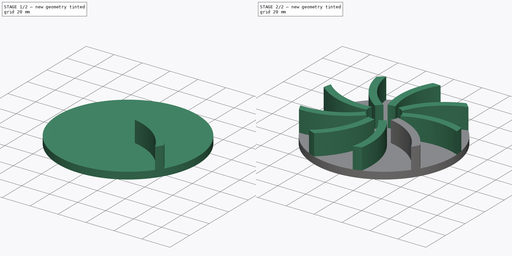
[diagram: build sequence overview — one tinted view per stage of 2, left to right]
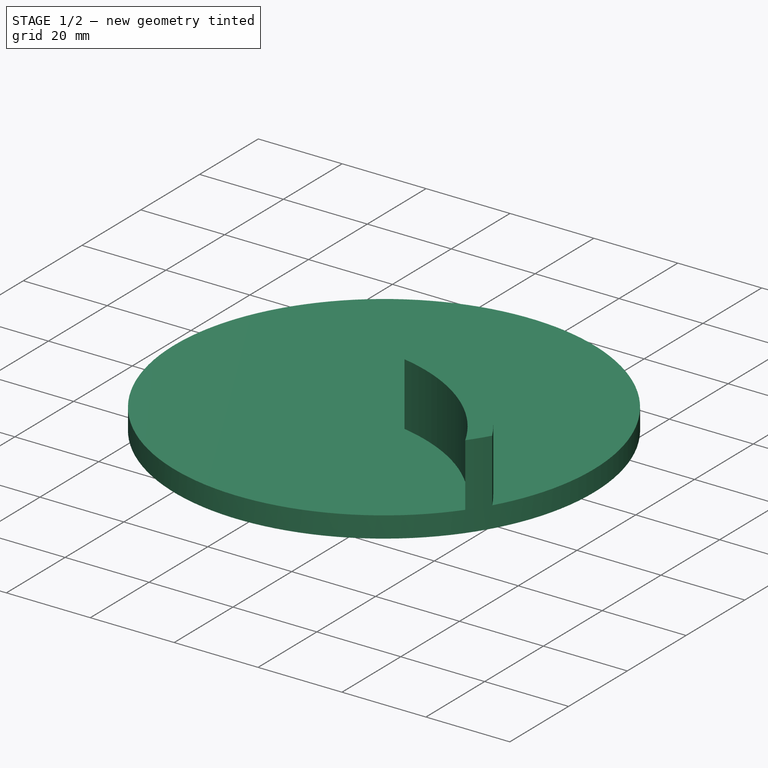
[diagram: stage 1 of 2 — iso view after this stage's code; geometry added in this stage tinted green]
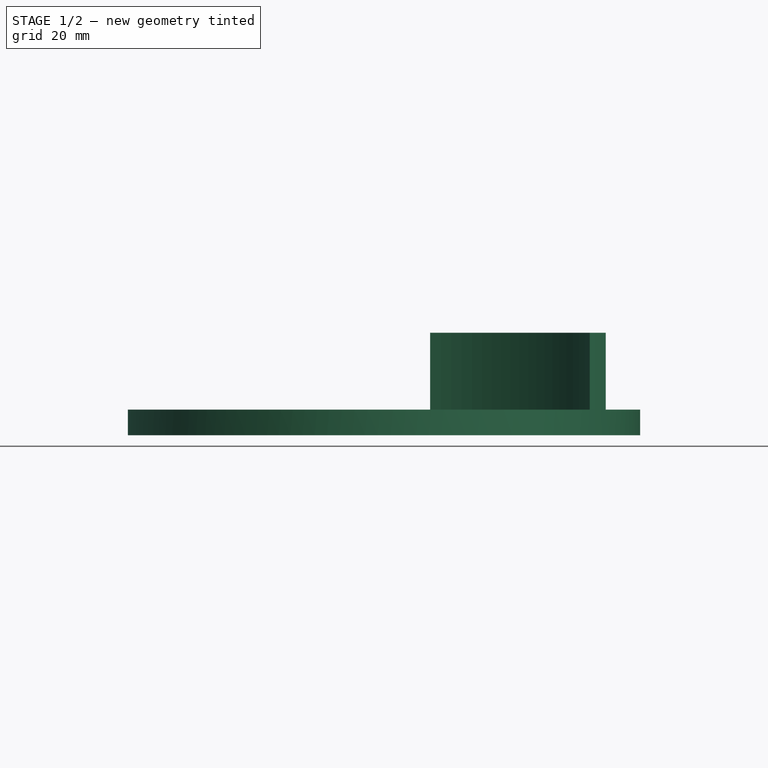
[diagram: stage 1 of 2 — front view after this stage's code; geometry added in this stage tinted green]
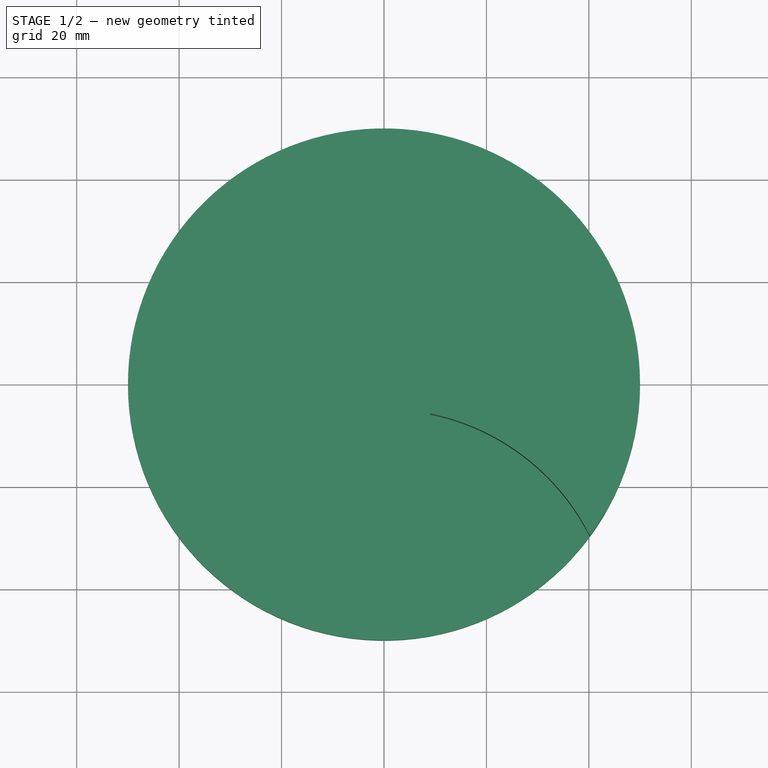
[diagram: stage 1 of 2 — top view after this stage's code; geometry added in this stage tinted green]
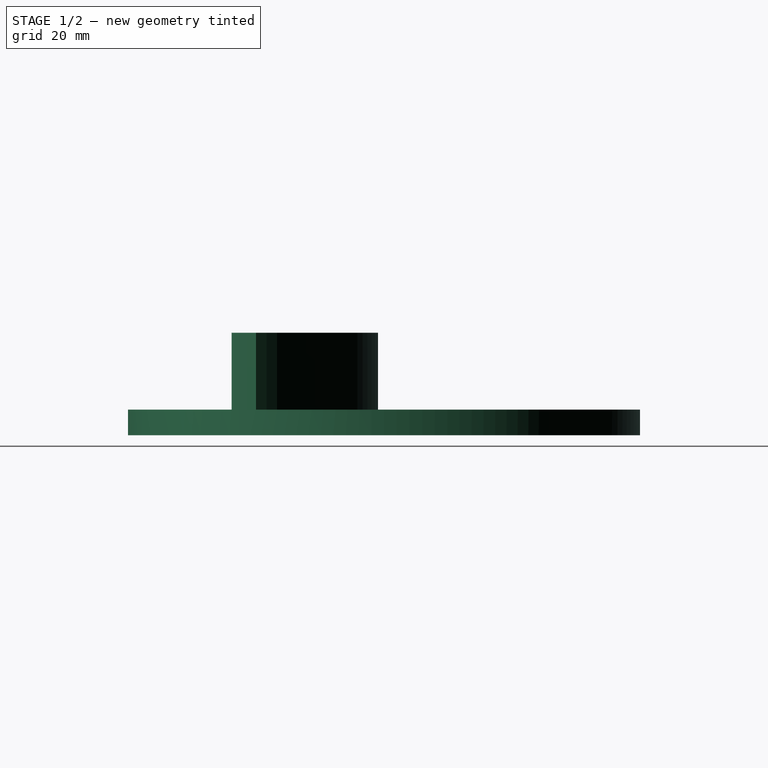
[diagram: stage 1 of 2 — right view after this stage's code; geometry added in this stage tinted green]
FCSTD DOCUMENT  (FreeCAD 0.21R33771 (Git))
Label: Machine Elment Design_CentrifugalFan
License: All rights reserved
LicenseURL: http://en.wikipedia.org/wiki/All_rights_reserved
objects: Sketcher::SketchObject×2, PartDesign::Pad×2, PartDesign::PolarPattern×1, PartDesign::MultiTransform×1, PartDesign::Body×1
note: 9 computed .brp shape members not serialized (recipe doc carries the construction recipe); baked Part::Feature solids carry a one-line shape summary decoded from their .brp

FEATURE [Sketcher::SketchObject] Sketch
  FullyConstrained = true
  MapMode = 5
  Support = -> [XY_Plane]
  sketch-geometry (1):
    g0: Circle CenterX=0 CenterY=0 CenterZ=0 NormalX=0 NormalY=0 NormalZ=1 AngleXU=0 Radius=50
  constraints (2):
    c: Coincident(g0,g-1)
    c: Diameter(g0) = 100
FEATURE [PartDesign::Pad] Pad
  Direction = (0,0,1)
  Length = 5
  Length2 = 10
  Profile = -> Sketch
  ReferenceAxis = -> Sketch [N_Axis]
  Reversed = true
  Type = 0
FEATURE [Sketcher::SketchObject] Sketch001
  ExternalGeometry = -> [Pad]
  FullyConstrained = true
  MapMode = 5
  Support = -> [XY_Plane]
  sketch-geometry (4):
    g0: ArcOfCircle CenterX=0 CenterY=-50 CenterZ=0 NormalX=0 NormalY=0 NormalZ=1 AngleXU=0 Radius=50 StartAngle=0.523599 EndAngle=1.35475
    g1: ArcOfCircle CenterX=0 CenterY=-50 CenterZ=0 NormalX=0 NormalY=0 NormalZ=1 AngleXU=0 Radius=45 StartAngle=0.466765 EndAngle=1.36908
    g2: ArcOfCircle CenterX=9.01574 CenterY=-5.9124 CenterZ=0 NormalX=0 NormalY=0 NormalZ=1 AngleXU=0 Radius=39.2407 StartAngle=5.63031 EndAngle=5.77519
    g3: ArcOfCircle CenterX=0 CenterY=0 CenterZ=0 NormalX=0 NormalY=0 NormalZ=1 AngleXU=0 Radius=10.7815 StartAngle=5.70275 EndAngle=6.17516
  constraints (13):
    c: PointOnObject(g0,g-3)
    c: PointOnObject(g0,g-3)
    c: Coincident(g1,g0)
    c: PointOnObject(g1,g-3)
    c: Coincident(g2,g1)
    c: Coincident(g2,g0)
    c: Coincident(g2,g1)
    c: Coincident(g3,g-3)
    c: Coincident(g3,g0)
    c: Coincident(g3,g1)
    c: Vertical(g3,g0)
    c: Radius(g0) = 50
    c: Radius(g1) = 45
FEATURE [PartDesign::Pad] Pad001
  BaseFeature = -> Pad
  Direction = (0,0,1)
  Length = 15
  Length2 = 10
  Profile = -> Sketch001
  ReferenceAxis = -> Sketch001 [N_Axis]
  Type = 0
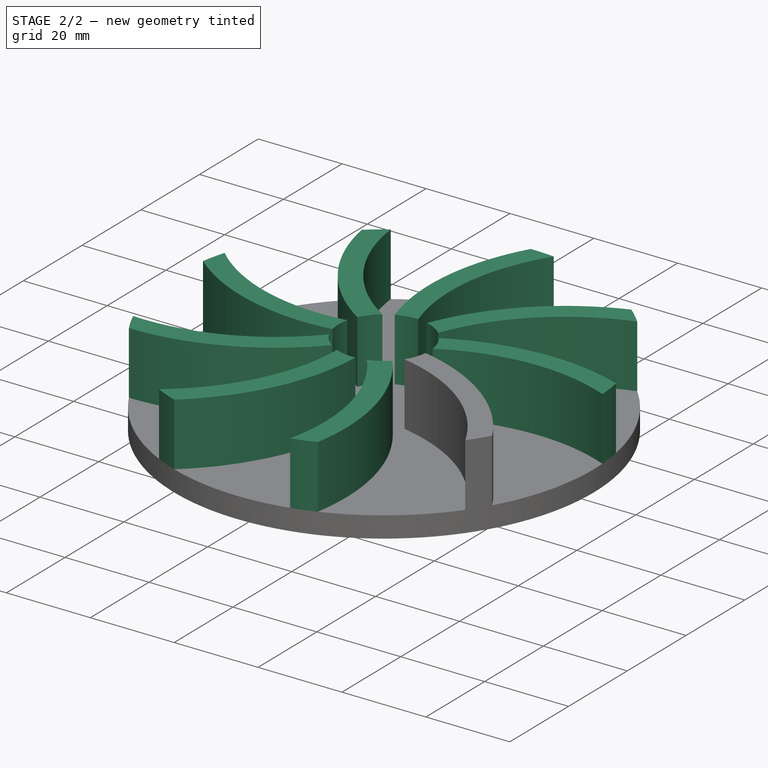
[diagram: stage 2 of 2 — iso view after this stage's code; geometry added in this stage tinted green]
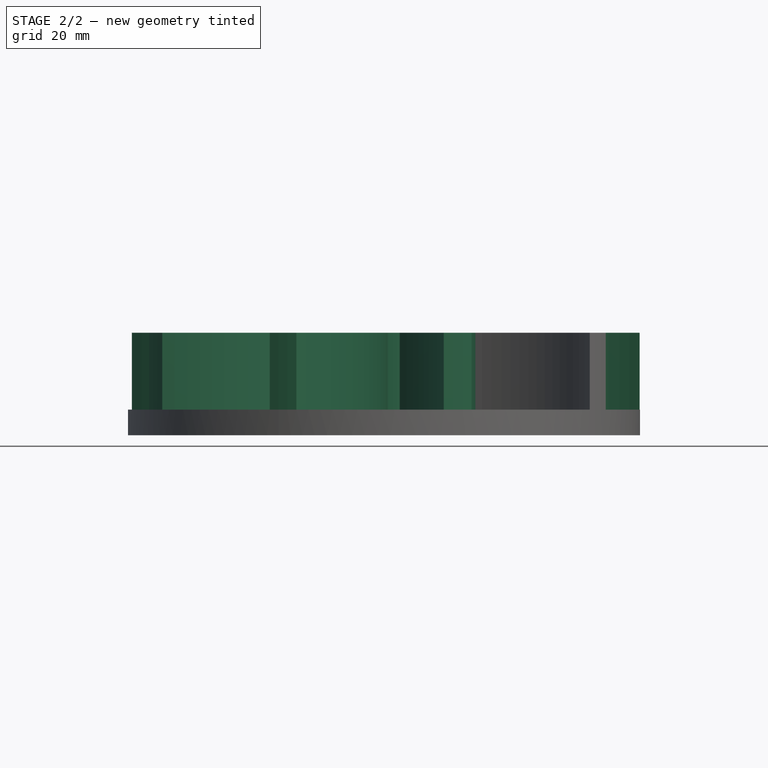
[diagram: stage 2 of 2 — front view after this stage's code; geometry added in this stage tinted green]
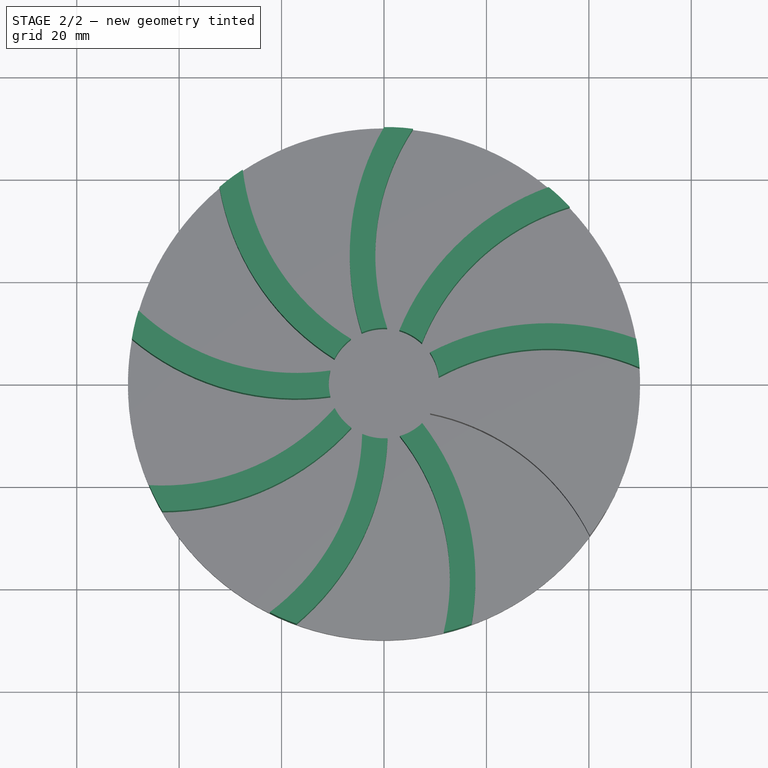
[diagram: stage 2 of 2 — top view after this stage's code; geometry added in this stage tinted green]
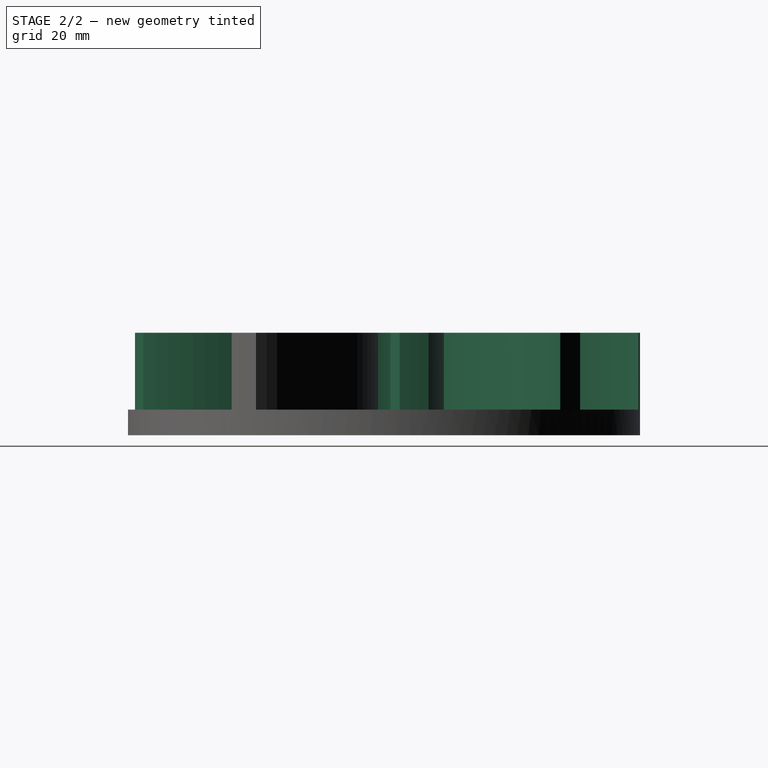
[diagram: stage 2 of 2 — right view after this stage's code; geometry added in this stage tinted green]
FEATURE [PartDesign::PolarPattern] PolarPattern
  Angle = 360
  Axis = -> Sketch001 [N_Axis]
  Occurrences = 9
FEATURE [PartDesign::MultiTransform] MultiTransform
  BaseFeature = -> Pad001
  Originals = -> [Pad001]
  Transformations = -> [PolarPattern]
FEATURE [PartDesign::Body] Body
  Group = -> [Sketch,Pad,Sketch001,Pad001,MultiTransform,PolarPattern]
  Origin = -> Origin
  Tip = -> MultiTransform
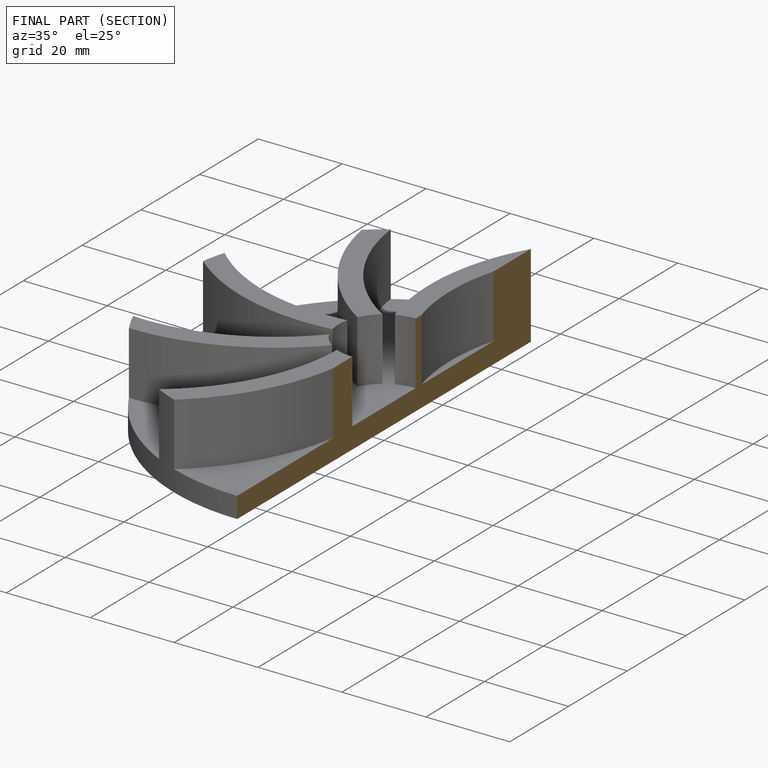
[diagram: finished part — half-section view (interior)]
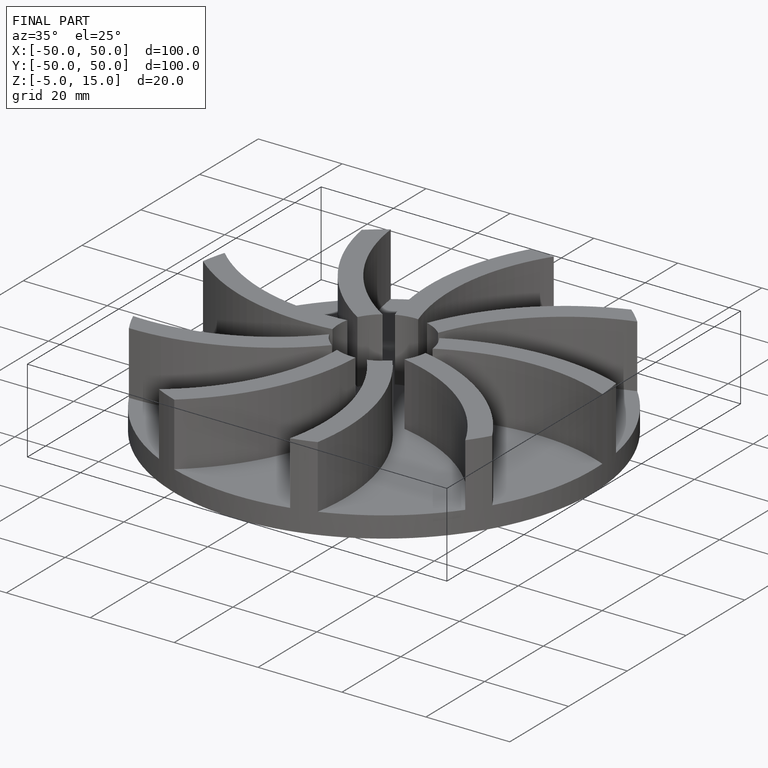
[diagram: finished part — iso view with bounding-box wireframe]
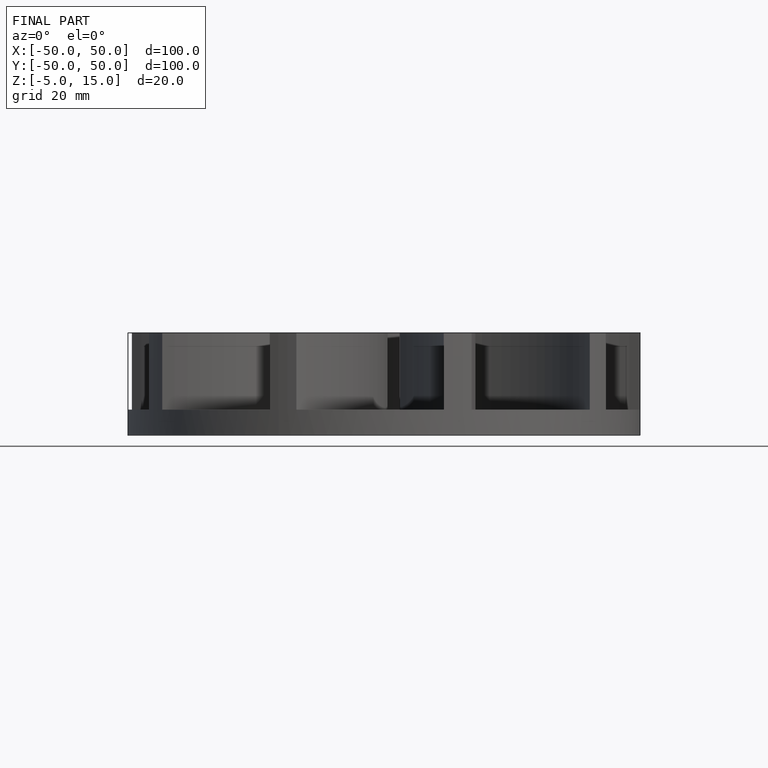
[diagram: finished part — front view with bounding-box wireframe]
